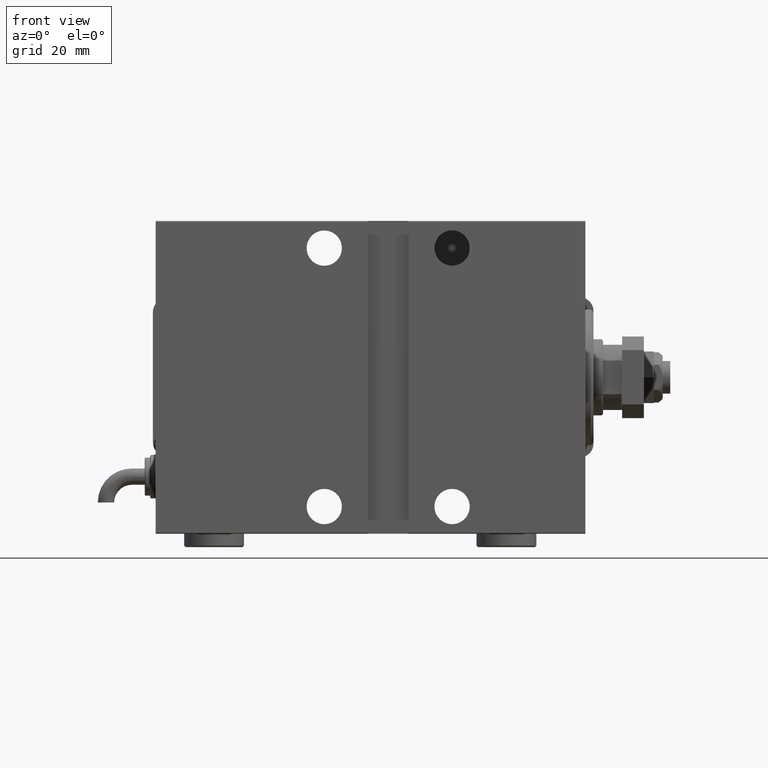
[diagram: clean part render]
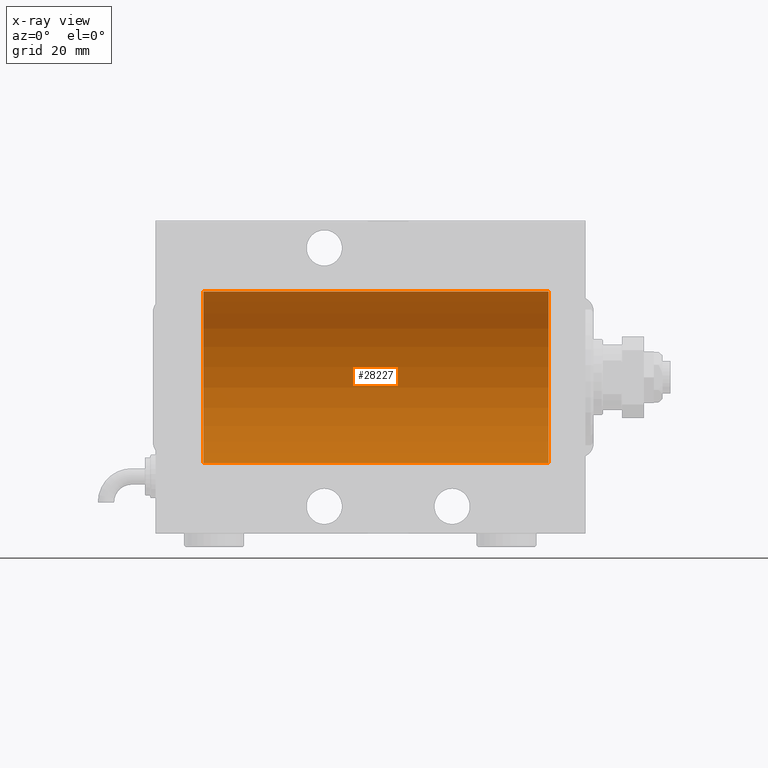
[diagram: x-ray — body ghosted, one internal face saturated and labeled with its STEP entity id]
A machine part, front view, then the same camera in x-ray: the body is ghosted and one INTERNAL B-rep face — a face not visible from any outside direction — is saturated and labeled: STEP entity #28227.
In plain terms, the highlighted cylindrical surface (partial cylindrical patch) has radius 31.5 mm, axis along (1, 0, -0).
Its self-contained STEP definition (entity closure, byte-faithful):
#1435 = CARTESIAN_POINT ( 'NONE',  ( 140.5000000000000000, 0.000000000000000000, 31.50000000000000000 ) ) ;
#2264 = DIRECTION ( 'NONE',  ( -1.000000000000000000, -0.000000000000000000, -0.000000000000000000 ) ) ;
#8024 = CIRCLE ( 'NONE', #52296, 31.50000000000000000 ) ;
#11722 = DIRECTION ( 'NONE',  ( 0.000000000000000000, 0.000000000000000000, 1.000000000000000000 ) ) ;
#12401 = CARTESIAN_POINT ( 'NONE',  ( 140.5000000000000000, 0.000000000000000000, 31.50000000000000000 ) ) ;
#12858 = VECTOR ( 'NONE', #54249, 1000.000000000000000 ) ;
#12891 = DIRECTION ( 'NONE',  ( -1.000000000000000000, -0.000000000000000000, -0.000000000000000000 ) ) ;
#15835 = CYLINDRICAL_SURFACE ( 'NONE', #53642, 31.50000000000000000 ) ;
#16177 = EDGE_CURVE ( 'NONE', #28151, #52006, #35107, .T. ) ;
#16918 = LINE ( 'NONE', #12401, #12858 ) ;
#18831 = CARTESIAN_POINT ( 'NONE',  ( 140.5000000000000000, 3.857637417314162689E-15, -31.50000000000000000 ) ) ;
#19061 = CARTESIAN_POINT ( 'NONE',  ( 13.50000000000001243, 0.000000000000000000, 0.000000000000000000 ) ) ;
#24687 = VERTEX_POINT ( 'NONE', #1435 ) ;
#24856 = CARTESIAN_POINT ( 'NONE',  ( 140.5000000000000000, 3.857637417314162689E-15, -31.50000000000000000 ) ) ;
#25944 = DIRECTION ( 'NONE',  ( 0.000000000000000000, 0.000000000000000000, 1.000000000000000000 ) ) ;
#26803 = EDGE_LOOP ( 'NONE', ( #40709, #37950, #51497, #54920 ) ) ;
#28151 = VERTEX_POINT ( 'NONE', #33916 ) ;
#28227 = ADVANCED_FACE ( 'NONE', ( #57062 ), #15835, .F. ) ;
#29342 = AXIS2_PLACEMENT_3D ( 'NONE', #19061, #53014, #25944 ) ;
#30978 = LINE ( 'NONE', #18831, #51576 ) ;
#32635 = CARTESIAN_POINT ( 'NONE',  ( 13.50000000000001243, 0.000000000000000000, 31.50000000000000000 ) ) ;
#33916 = CARTESIAN_POINT ( 'NONE',  ( 13.50000000000001243, 3.857637417314162689E-15, -31.50000000000000000 ) ) ;
#34216 = CARTESIAN_POINT ( 'NONE',  ( 140.5000000000000000, 0.000000000000000000, 0.000000000000000000 ) ) ;
#35107 = CIRCLE ( 'NONE', #29342, 31.50000000000000000 ) ;
#37950 = ORIENTED_EDGE ( 'NONE', *, *, #49142, .T. ) ;
#37960 = CARTESIAN_POINT ( 'NONE',  ( 140.5000000000000000, 0.000000000000000000, 0.000000000000000000 ) ) ;
#39420 = EDGE_CURVE ( 'NONE', #24687, #52006, #16918, .T. ) ;
#39695 = EDGE_CURVE ( 'NONE', #40257, #24687, #8024, .T. ) ;
#40257 = VERTEX_POINT ( 'NONE', #24856 ) ;
#40709 = ORIENTED_EDGE ( 'NONE', *, *, #39695, .F. ) ;
#49142 = EDGE_CURVE ( 'NONE', #40257, #28151, #30978, .T. ) ;
#51497 = ORIENTED_EDGE ( 'NONE', *, *, #16177, .T. ) ;
#51576 = VECTOR ( 'NONE', #12891, 1000.000000000000000 ) ;
#52006 = VERTEX_POINT ( 'NONE', #32635 ) ;
#52296 = AXIS2_PLACEMENT_3D ( 'NONE', #37960, #56297, #11722 ) ;
#52554 = DIRECTION ( 'NONE',  ( 0.000000000000000000, 0.000000000000000000, 1.000000000000000000 ) ) ;
#53014 = DIRECTION ( 'NONE',  ( -1.000000000000000000, 0.000000000000000000, 0.000000000000000000 ) ) ;
#53642 = AXIS2_PLACEMENT_3D ( 'NONE', #34216, #2264, #52554 ) ;
#54249 = DIRECTION ( 'NONE',  ( -1.000000000000000000, -0.000000000000000000, -0.000000000000000000 ) ) ;
#54920 = ORIENTED_EDGE ( 'NONE', *, *, #39420, .F. ) ;
#56297 = DIRECTION ( 'NONE',  ( -1.000000000000000000, 0.000000000000000000, 0.000000000000000000 ) ) ;
#57062 = FACE_OUTER_BOUND ( 'NONE', #26803, .T. ) ;